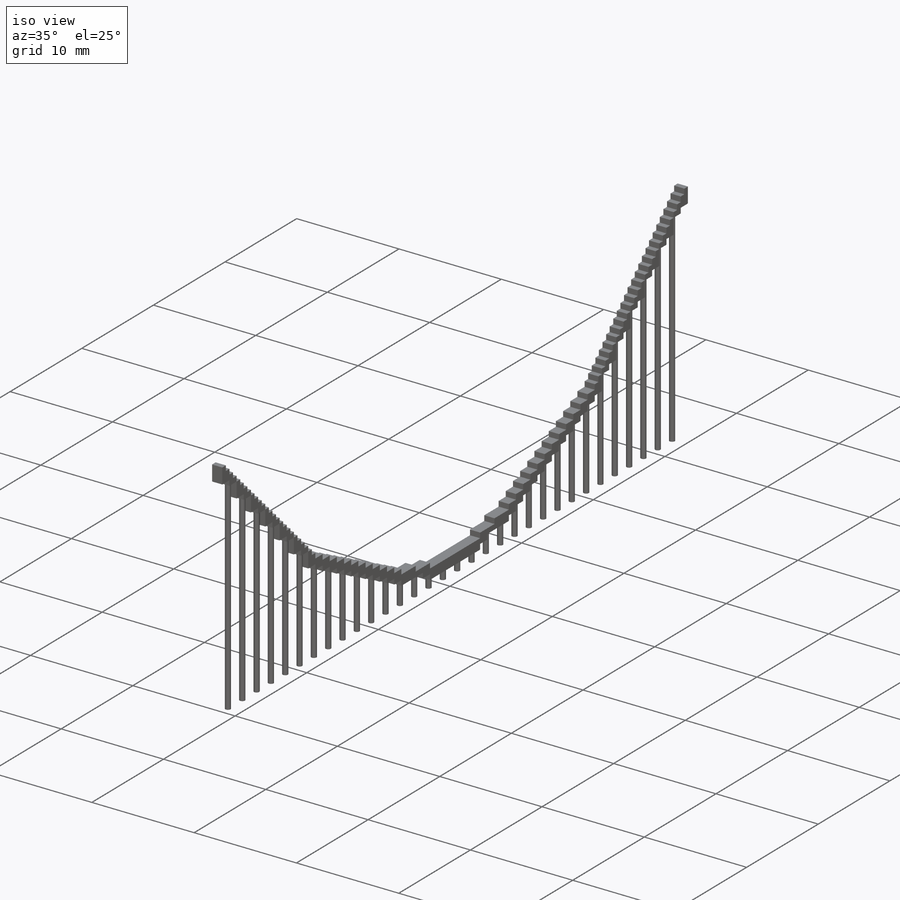
[diagram: iso view]
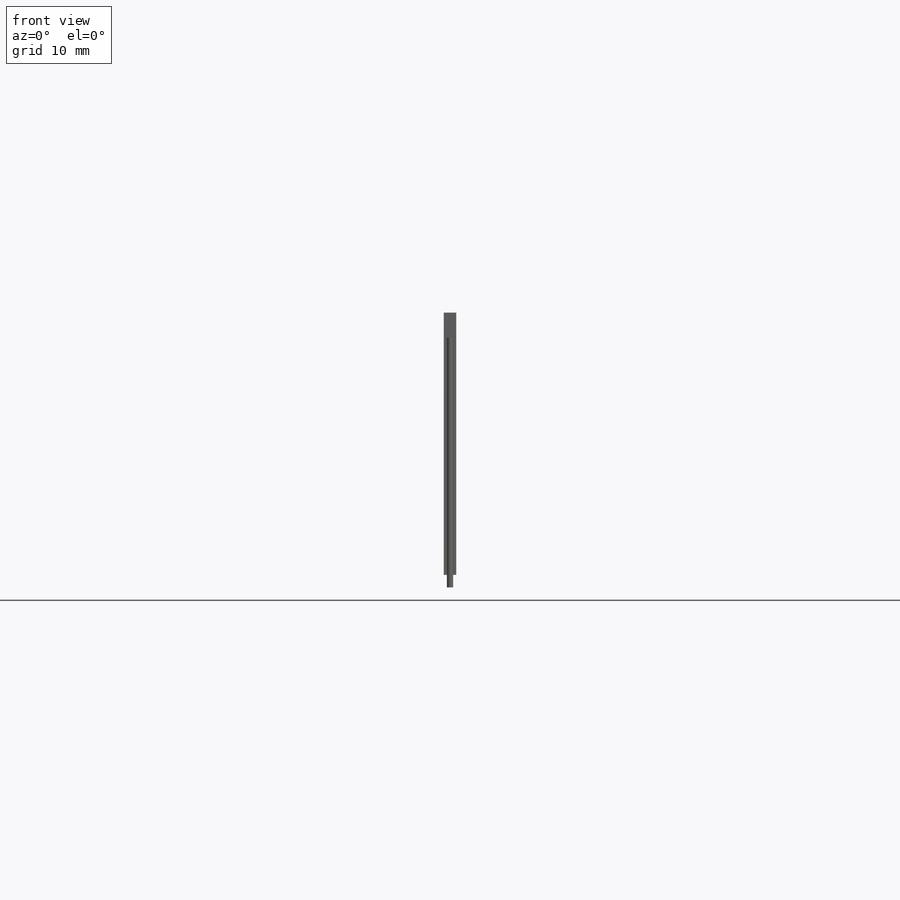
[diagram: front view]
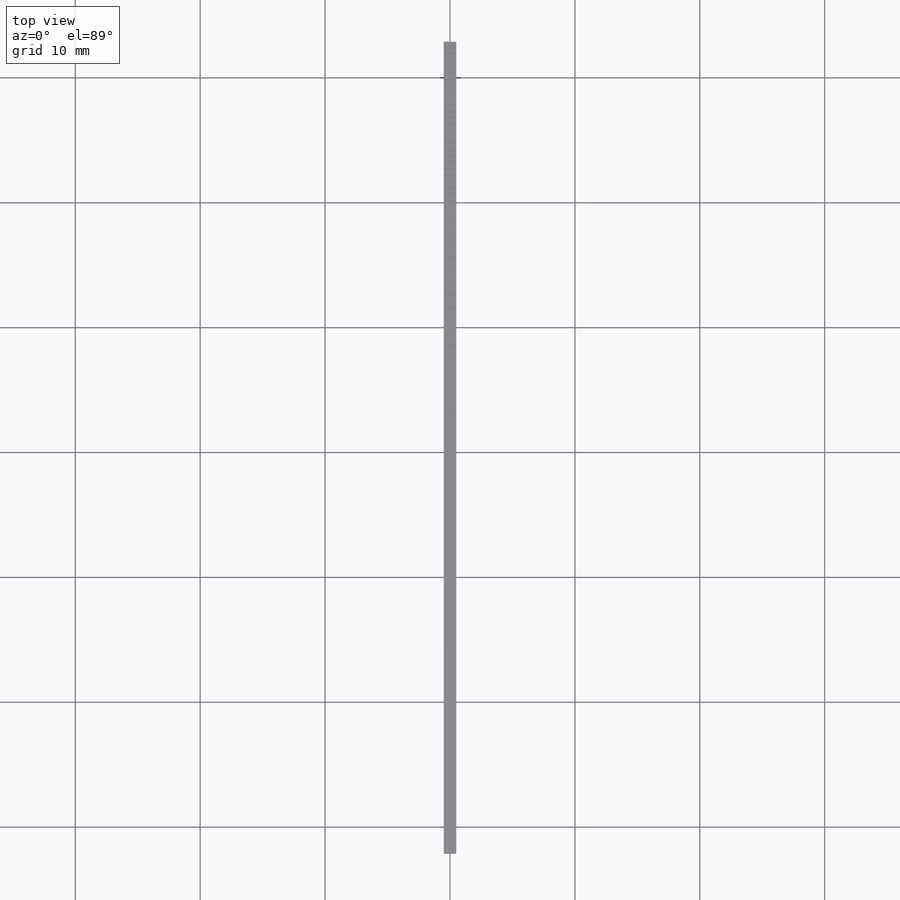
[diagram: top view]
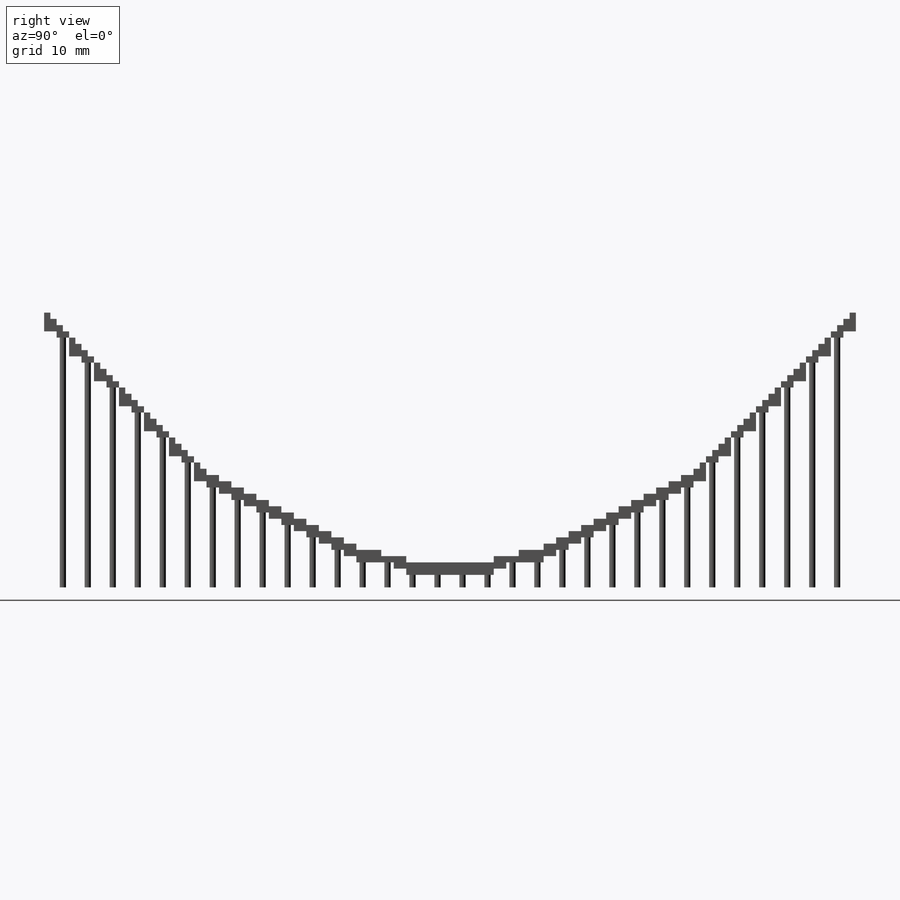
[diagram: right view]
SOLIDWORKS PART (.sldprt)
format: sldprt  version: not decoded by parser v0  size: 777,216 bytes
history: native  units: mm
features: sketch x35, plane x3, extrude x3, material x1, cut_extrude x1, mirror x1 (+9 scaffold rows collapsed)
feature tree (53):
  scaffold x9  (default folders/planes/origin — collapsed)
  material  "Material <nicht festgelegt>"
  plane  "Ebene vorne"
  plane  "Ebene oben"
  plane  "Ebene rechts"
  sketch  "Skizze1"
  sketch  "Block1-2"
  sketch  "Block1-3"
  sketch  "Block1-4"
  sketch  "Block1-5"
  sketch  "Block1-6"
  sketch  "Block1-7"
  sketch  "Block1-8"
  sketch  "Block1-9"
  sketch  "Block1-10"
  sketch  "Block1-11"
  sketch  "Block1-12"
  sketch  "Block1-13"
  sketch  "Block1-14"
  sketch  "Block1-15"
  sketch  "Block1-16"
  sketch  "Block1-17"
  sketch  "Block1-18"
  sketch  "Block1-19"
  sketch  "Block1-20"
  sketch  "Block1-21"
  sketch  "Block1-22"
  sketch  "Block1-23"
  sketch  "Block1-24"
  sketch  "Block1-25"
  sketch  "Block1-26"
  sketch  "Block1-27"
  sketch  "Block1-28"
  sketch  "Block1-29"
  sketch  "Block1-30"
  sketch  "Block1-31"
  sketch  "Block1-32"  dims[c1.D1=65.0mm c1.D2=22.0mm c1.D3=2.0mm c1.D4=12.1875mm c1.D5=~0.568973mm c1.D6=~0.568973mm c2.D5=~0.779293mm c2.D6=~0.735999mm c3.D5=~0.321954mm]
  extrude  "Aufsatz-Linear austragen1"  Depth=1mm
  sketch  "Skizze2"  dims[c1.D1=0.5mm c1.D2=1.0mm c2.D1=0.5mm c2.D2=1.0mm c3.D1=0.5mm c3.D2=1.0mm c4.D1=0.5mm c4.D2=1.0mm c5.D1=0.5mm c5.D2=1.0mm c6.D1=0.5mm c6.D2=1.0mm c7.D1=0.5mm c7.D2=1.0mm c8.D1=0.5mm c8.D2=1.0mm c9.D1=0.5mm c9.D2=1.0mm c10.D1=0.5mm c10.D2=1.0mm c11.D1=0.5mm c11.D2=1.0mm c12.D1=0.5mm c12.D2=1.0mm c13.D1=0.5mm c13.D2=1.0mm c14.D1=0.5mm c14.D2=1.0mm]
  extrude  "Aufsatz-Linear austragen2"  Depth=1mm
  sketch  "Skizze4"  dims[c1.D1=~0.603671mm c1.D3=0.5mm c2.D1=1.5mm c2.D2=2.0mm c2.D3=~0.17381mm]
  extrude  "Aufsatz-Linear austragen3"  [1 undecoded]
  sketch  "Skizze5"  dims[c1.D1=0.5mm c1.D2=0.5mm c2.D1=0.5mm c2.D2=0.5mm c3.D1=0.5mm c3.D2=0.5mm c4.D1=0.5mm c4.D2=0.5mm c5.D1=0.5mm c5.D2=0.5mm c6.D1=0.5mm c6.D2=0.5mm c7.D1=~0.406928mm c7.D2=~0.104358mm c8.D1=0.5mm c8.D2=0.5mm c9.D1=0.5mm c9.D2=0.5mm c10.D1=0.5mm c10.D2=0.5mm c11.D1=0.5mm c11.D2=0.5mm c12.D1=0.5mm c12.D2=0.5mm c13.D1=0.5mm c13.D2=0.5mm c14.D1=0.5mm c14.D2=0.5mm c15.D1=0.5mm c15.D2=0.5mm]
  cut_extrude  "Schnitt-Linear austragen1"  [1 undecoded]
  mirror  "Spiegeln1"
decode coverage: 6 of 40 modeling features carry decoded parameters
note: ~ marks probable driven/reference dimensions
note: 2 parameter values undecoded
note: suppression state not decoded; provenance and decode notes live in map.json
